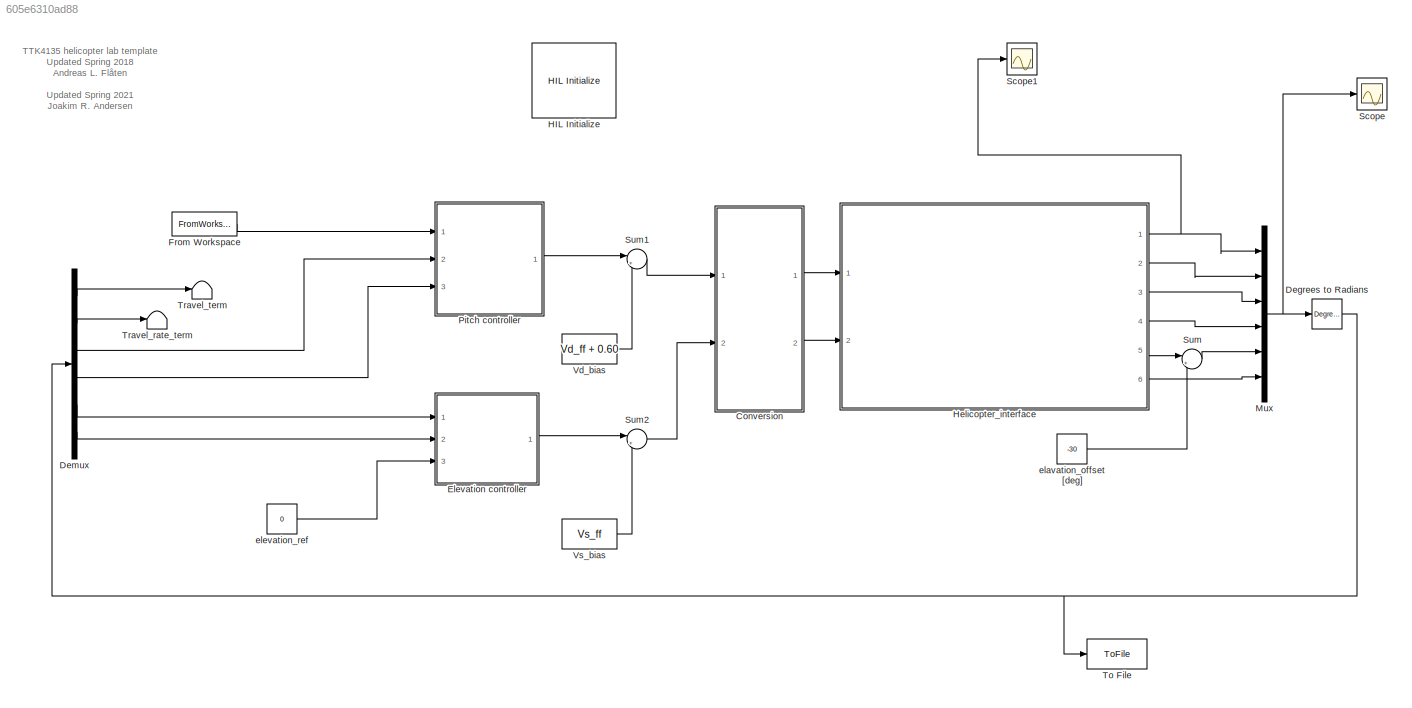
MODEL slx_605e6310ad88
KIND model
CONFIG AbsTol = auto
CONFIG EnableMultiTasking = on
CONFIG FixedStep = 0.002
CONFIG MaxStep = auto
CONFIG MinStep = auto
CONFIG PostLoadFcn = qc_set_target_type(getConfigSet(bdroot, 'QUARC Default Target Configuration'));
CONFIG RelTol = 1e-3
CONFIG SampleTimeConstraint = Unconstrained
CONFIG SolverName = ode1
CONFIG StartTime = 0.0
CONFIG StopTime = 35
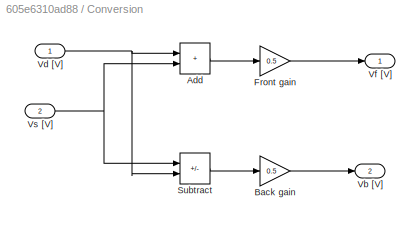
BLOCK [SubSystem] Conversion
  Ports = [2, 2]
  RequestExecContextInheritance = off
BLOCK [Sum] Conversion/Add
  IconShape = rectangular
  Ports = [2, 1]
BLOCK [Gain] Conversion/Back gain
  Gain = 0.5
BLOCK [Gain] Conversion/Front gain
  Gain = 0.5
BLOCK [Sum] Conversion/Subtract
  IconShape = rectangular
  Inputs = +-
  Ports = [2, 1]
BLOCK [Outport] Conversion/Vb [V]
  Port = 2
BLOCK [Inport] Conversion/Vd [V]
BLOCK [Outport] Conversion/Vf [V]
BLOCK [Inport] Conversion/Vs [V]
  Port = 2
BLOCK [Reference] Degrees to Radians  REF=simulink_extras/Transformations/Degrees to
Radians
  Ports = [1, 1]
  SourceBlock = simulink_extras/Transformations/Degrees to\nRadians
  SourceProductBaseCode = SL
  SourceType = DegreesToRadians
BLOCK [Demux] Demux
  Outputs = 6
  Ports = [1, 6]
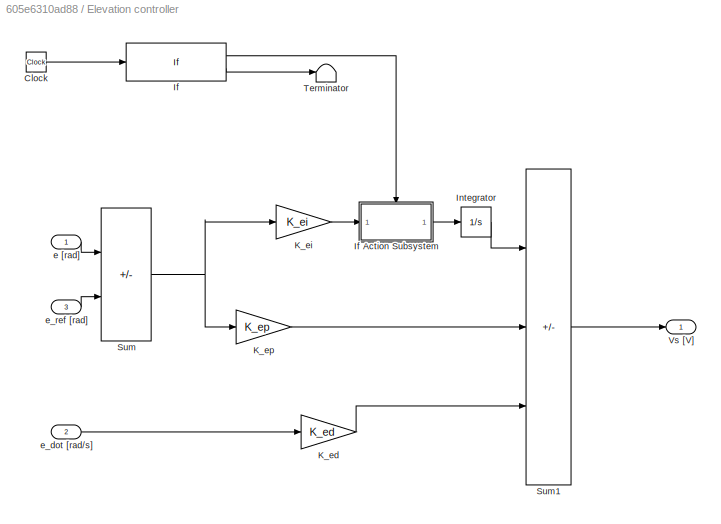
BLOCK [SubSystem] Elevation controller
  Ports = [3, 1]
  RequestExecContextInheritance = off
BLOCK [Clock] Elevation controller/Clock
BLOCK [If] Elevation controller/If
  IfExpression = u1 >=2
  Ports = [1, 2]
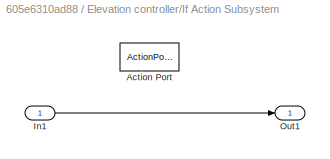
BLOCK [SubSystem] Elevation controller/If Action Subsystem
  Ports = [1, 1, 0, 0, 0, 0, 0, 1]
  RequestExecContextInheritance = off
  TreatAsAtomicUnit = on
BLOCK [ActionPort] Elevation controller/If Action Subsystem/Action Port
  ActionPortLabel = if(u1 >=2)
BLOCK [Inport] Elevation controller/If Action Subsystem/In1
BLOCK [Outport] Elevation controller/If Action Subsystem/Out1
BLOCK [Integrator] Elevation controller/Integrator
  LimitOutput = on
  Ports = [1, 1]
BLOCK [Gain] Elevation controller/K_ed
  Gain = K_ed
  OutDataTypeStr = Inherit: Same as input
  ParamDataTypeStr = Inherit: Same as input
  SaturateOnIntegerOverflow = on
BLOCK [Gain] Elevation controller/K_ei
  Gain = K_ei
  OutDataTypeStr = Inherit: Same as input
  ParamDataTypeStr = Inherit: Same as input
  SaturateOnIntegerOverflow = on
BLOCK [Gain] Elevation controller/K_ep
  Gain = K_ep
  OutDataTypeStr = Inherit: Same as input
  ParamDataTypeStr = Inherit: Same as input
  SaturateOnIntegerOverflow = on
BLOCK [Sum] Elevation controller/Sum
  IconShape = rectangular
  InputSameDT = on
  Inputs = -+
  OutDataTypeStr = Inherit: Same as first input
  Ports = [2, 1]
  SaturateOnIntegerOverflow = on
BLOCK [Sum] Elevation controller/Sum1
  IconShape = rectangular
  InputSameDT = on
  Inputs = ++-
  OutDataTypeStr = Inherit: Same as first input
  Ports = [3, 1]
  SaturateOnIntegerOverflow = on
BLOCK [Terminator] Elevation controller/Terminator
BLOCK [Outport] Elevation controller/Vs [V]
  InitialOutput = 0
BLOCK [Inport] Elevation controller/e [rad]
BLOCK [Inport] Elevation controller/e_dot [rad//s]
  Port = 2
BLOCK [Inport] Elevation controller/e_ref [rad]
  Port = 3
BLOCK [FromWorkspace] From Workspace
  SampleTime = -1
  VariableName = uref
BLOCK [Reference] HIL Initialize  REF=quarc_library/Data Acquisition/Generic/Configuration/HIL Initialize
  AttributesFormatString = %<object_name> (%<board_type>-%<board_number>)
  Ports = []
  Priority = -99
  SourceBlock = quarc_library/Data Acquisition/Generic/Configuration/HIL Initialize
  SourceProductName = QUARC Targets
  SourceType = HIL Initialize
  UserDataPersistent = on
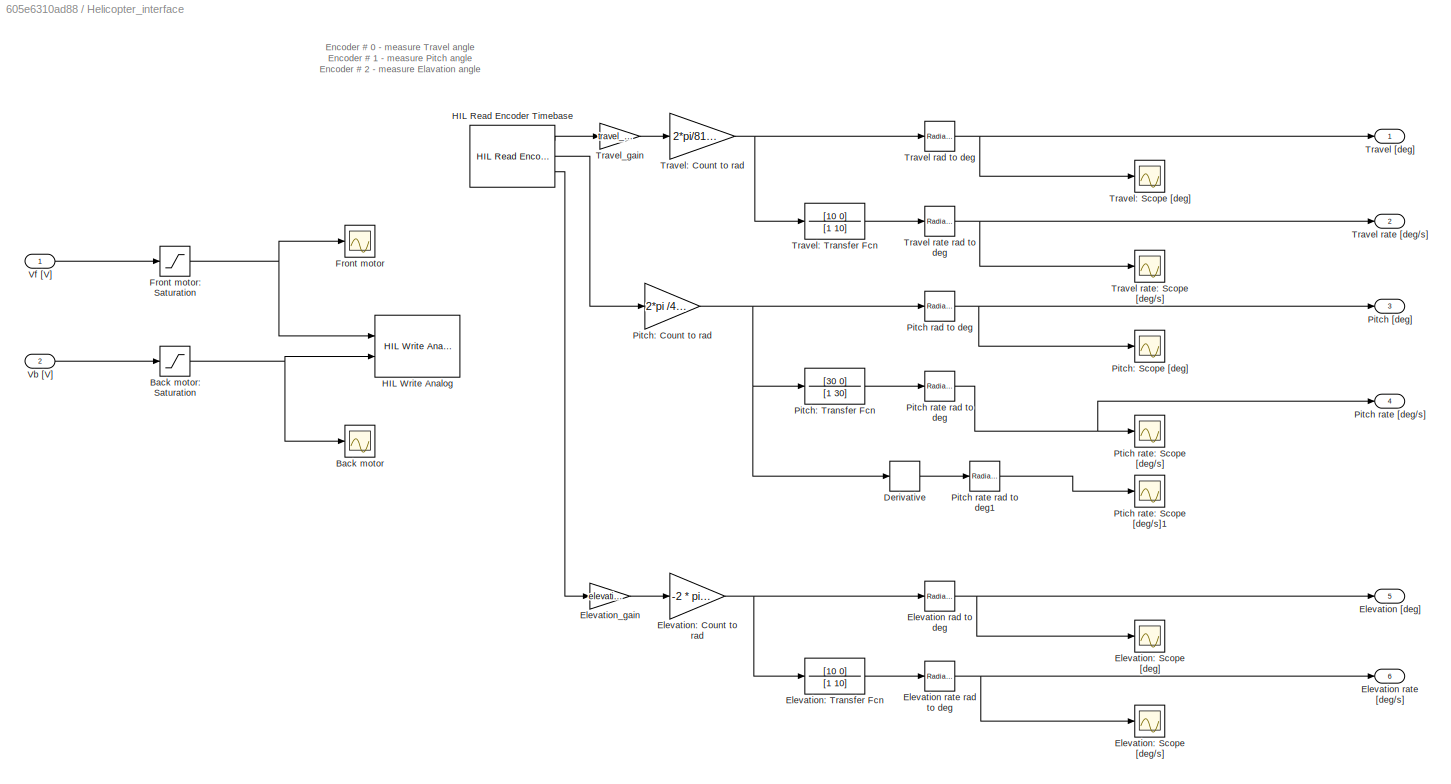
BLOCK [SubSystem] Helicopter_interface
  Ports = [2, 6]
  RequestExecContextInheritance = off
BLOCK [Scope] Helicopter_interface/Back motor
  Floating = off
  NumInputPorts = 1
  Ports = [1]
  ScopeSpecificationString = C++SS(StrPVP('Location','[1414, 470, 1738, 709]'),StrPVP('Open','off'),MxPVP('AxesTitles',54,'struct(''axes1'',''%<SignalLabel>'')'),MxPVP('ScopeGraphics',57,'struct(''FigureColor'',''[0.5 0.5 0.5]'',''AxesColor'',''[0 0 0]'',''AxesTickColor'',''[1 1 1]'',''LineColors'',''[1 1 0;1 0 1;0 1 1;1 0 0;0 1 0;0 0 1]'',''LineStyles'',''-|-|-|-|-|-'',''LineWidths'',''[0.5 0.5 0.5 0.5 0.5 0.5]'',''MarkerSty...<+319ch>
BLOCK [Saturate] Helicopter_interface/Back motor: Saturation
  LowerLimit = -5
  UpperLimit = 5
BLOCK [Derivative] Helicopter_interface/Derivative
BLOCK [Outport] Helicopter_interface/Elevation [deg]
  Port = 5
BLOCK [Reference] Helicopter_interface/Elevation rad to deg  REF=simulink_extras/Transformations/Radians
to Degrees
  Ports = [1, 1]
  SourceBlock = simulink_extras/Transformations/Radians\nto Degrees
  SourceProductBaseCode = SL
  SourceType = RadiansToDegrees
BLOCK [Outport] Helicopter_interface/Elevation rate [deg//s]
  Port = 6
BLOCK [Reference] Helicopter_interface/Elevation rate rad to deg  REF=simulink_extras/Transformations/Radians
to Degrees
  Ports = [1, 1]
  SourceBlock = simulink_extras/Transformations/Radians\nto Degrees
  SourceProductBaseCode = SL
  SourceType = RadiansToDegrees
BLOCK [Gain] Helicopter_interface/Elevation: Count to rad
  Gain = -2 * pi /4096
BLOCK [Scope] Helicopter_interface/Elevation: Scope [deg//s]
  Floating = off
  NumInputPorts = 1
  Ports = [1]
  ScopeSpecificationString = C++SS(StrPVP('Location','[929, 229, 1697, 870]'),StrPVP('Open','off'),MxPVP('AxesTitles',54,'struct(''axes1'',''%<SignalLabel>'')'),MxPVP('ScopeGraphics',57,'struct(''FigureColor'',''[0.5 0.5 0.5]'',''AxesColor'',''[0 0 0]'',''AxesTickColor'',''[1 1 1]'',''LineColors'',''[1 1 0;1 0 1;0 1 1;1 0 0;0 1 0;0 0 1]'',''LineStyles'',''-|-|-|-|-|-'',''LineWidths'',''[0.5 0.5 0.5 0.5 0.5 0.5]'',''MarkerStyl...<+314ch>
BLOCK [Scope] Helicopter_interface/Elevation: Scope [deg]
  Floating = off
  NumInputPorts = 1
  Ports = [1]
  ScopeSpecificationString = C++SS(StrPVP('Location','[751, 178, 1705, 870]'),StrPVP('Open','off'),MxPVP('AxesTitles',54,'struct(''axes1'',''%<SignalLabel>'')'),MxPVP('ScopeGraphics',57,'struct(''FigureColor'',''[0.5 0.5 0.5]'',''AxesColor'',''[0 0 0]'',''AxesTickColor'',''[1 1 1]'',''LineColors'',''[1 1 0;1 0 1;0 1 1;1 0 0;0 1 0;0 0 1]'',''LineStyles'',''-|-|-|-|-|-'',''LineWidths'',''[0.5 0.5 0.5 0.5 0.5 0.5]'',''MarkerStyl...<+313ch>
BLOCK [TransferFcn] Helicopter_interface/Elevation: Transfer Fcn
  Denominator = [1 10]
  Numerator = [10 0]
BLOCK [Gain] Helicopter_interface/Elevation_gain
  Gain = elevation_gain
  NameLocation = top
BLOCK [Scope] Helicopter_interface/Front motor
  Floating = off
  NumInputPorts = 1
  Ports = [1]
  ScopeSpecificationString = C++SS(StrPVP('Location','[1340, 218, 1666, 457]'),StrPVP('Open','off'),MxPVP('AxesTitles',54,'struct(''axes1'',''%<SignalLabel>'')'),MxPVP('ScopeGraphics',57,'struct(''FigureColor'',''[0.5 0.5 0.5]'',''AxesColor'',''[0 0 0]'',''AxesTickColor'',''[1 1 1]'',''LineColors'',''[1 1 0;1 0 1;0 1 1;1 0 0;0 1 0;0 0 1]'',''LineStyles'',''-|-|-|-|-|-'',''LineWidths'',''[0.5 0.5 0.5 0.5 0.5 0.5]'',''MarkerSty...<+287ch>
BLOCK [Saturate] Helicopter_interface/Front motor: Saturation
  LowerLimit = -5
  UpperLimit = 5
BLOCK [Reference] Helicopter_interface/HIL Read Encoder Timebase  REF=quarc_library/Data Acquisition/Generic/Timebases/HIL Read Encoder
Timebase
  AttributesFormatString = (%<object_name>)
  Ports = [0, 3]
  SourceBlock = quarc_library/Data Acquisition/Generic/Timebases/HIL Read Encoder\nTimebase
  SourceProductName = QUARC Targets
  SourceType = HIL Read Encoder Timebase
  UserDataPersistent = on
BLOCK [Reference] Helicopter_interface/HIL Write Analog  REF=quarc_library/Data Acquisition/Generic/Immediate I//O/HIL Write Analog
  AttributesFormatString = (%<object_name>)
  Ports = [2]
  SourceBlock = quarc_library/Data Acquisition/Generic/Immediate I//O/HIL Write Analog
  SourceProductName = QUARC Targets
  SourceType = HIL Write Analog
  UserDataPersistent = on
BLOCK [Outport] Helicopter_interface/Pitch [deg]
  Port = 3
BLOCK [Reference] Helicopter_interface/Pitch rad to deg  REF=simulink_extras/Transformations/Radians
to Degrees
  Ports = [1, 1]
  SourceBlock = simulink_extras/Transformations/Radians\nto Degrees
  SourceProductBaseCode = SL
  SourceType = RadiansToDegrees
BLOCK [Outport] Helicopter_interface/Pitch rate [deg//s]
  Port = 4
BLOCK [Reference] Helicopter_interface/Pitch rate rad to deg  REF=simulink_extras/Transformations/Radians
to Degrees
  Ports = [1, 1]
  SourceBlock = simulink_extras/Transformations/Radians\nto Degrees
  SourceProductBaseCode = SL
  SourceType = RadiansToDegrees
BLOCK [Reference] Helicopter_interface/Pitch rate rad to deg1  REF=simulink_extras/Transformations/Radians
to Degrees
  Ports = [1, 1]
  SourceBlock = simulink_extras/Transformations/Radians\nto Degrees
  SourceProductBaseCode = SL
  SourceType = RadiansToDegrees
BLOCK [Gain] Helicopter_interface/Pitch: Count to rad
  Gain = 2*pi /4096
  NameLocation = top
BLOCK [Scope] Helicopter_interface/Pitch: Scope [deg]
  Floating = off
  NumInputPorts = 1
  Ports = [1]
  ScopeSpecificationString = C++SS(StrPVP('Location','[1064, 516, 1642, 962]'),StrPVP('Open','off'),MxPVP('AxesTitles',54,'struct(''axes1'',''%<SignalLabel>'')'),MxPVP('ScopeGraphics',57,'struct(''FigureColor'',''[0.5 0.5 0.5]'',''AxesColor'',''[0 0 0]'',''AxesTickColor'',''[1 1 1]'',''LineColors'',''[1 1 0;1 0 1;0 1 1;1 0 0;0 1 0;0 0 1]'',''LineStyles'',''-|-|-|-|-|-'',''LineWidths'',''[0.5 0.5 0.5 0.5 0.5 0.5]'',''MarkerSty...<+315ch>
BLOCK [TransferFcn] Helicopter_interface/Pitch: Transfer Fcn
  Denominator = [1 30]
  Numerator = [30 0]
BLOCK [Scope] Helicopter_interface/Ptich rate: Scope [deg//s]
  Floating = off
  NumInputPorts = 1
  Ports = [1]
  ScopeSpecificationString = C++SS(StrPVP('Location','[1033, 217, 1561, 703]'),StrPVP('Open','off'),MxPVP('AxesTitles',54,'struct(''axes1'',''%<SignalLabel>'')'),MxPVP('ScopeGraphics',57,'struct(''FigureColor'',''[0.5 0.5 0.5]'',''AxesColor'',''[0 0 0]'',''AxesTickColor'',''[1 1 1]'',''LineColors'',''[1 1 0;1 0 1;0 1 1;1 0 0;0 1 0;0 0 1]'',''LineStyles'',''-|-|-|-|-|-'',''LineWidths'',''[0.5 0.5 0.5 0.5 0.5 0.5]'',''MarkerSty...<+315ch>
BLOCK [Scope] Helicopter_interface/Ptich rate: Scope [deg//s]1
  Floating = off
  NumInputPorts = 1
  Ports = [1]
  ScopeSpecificationString = C++SS(StrPVP('Location','[708, 654, 1549, 1288]'),StrPVP('Open','off'),MxPVP('AxesTitles',54,'struct(''axes1'',''%<SignalLabel>'')'),MxPVP('ScopeGraphics',57,'struct(''FigureColor'',''[0.5 0.5 0.5]'',''AxesColor'',''[0 0 0]'',''AxesTickColor'',''[1 1 1]'',''LineColors'',''[1 1 0;1 0 1;0 1 1;1 0 0;0 1 0;0 0 1]'',''LineStyles'',''-|-|-|-|-|-'',''LineWidths'',''[0.5 0.5 0.5 0.5 0.5 0.5]'',''MarkerSty...<+316ch>
BLOCK [Outport] Helicopter_interface/Travel [deg]
BLOCK [Reference] Helicopter_interface/Travel rad to deg  REF=simulink_extras/Transformations/Radians
to Degrees
  Ports = [1, 1]
  SourceBlock = simulink_extras/Transformations/Radians\nto Degrees
  SourceProductBaseCode = SL
  SourceType = RadiansToDegrees
BLOCK [Reference] Helicopter_interface/Travel rate  rad to deg  REF=simulink_extras/Transformations/Radians
to Degrees
  Ports = [1, 1]
  SourceBlock = simulink_extras/Transformations/Radians\nto Degrees
  SourceProductBaseCode = SL
  SourceType = RadiansToDegrees
BLOCK [Outport] Helicopter_interface/Travel rate [deg//s]
  Port = 2
BLOCK [Scope] Helicopter_interface/Travel rate: Scope [deg//s]
  Floating = off
  NumInputPorts = 1
  Ports = [1]
  ScopeSpecificationString = C++SS(StrPVP('Location','[1008, 309, 1786, 904]'),StrPVP('Open','off'),MxPVP('AxesTitles',54,'struct(''axes1'',''%<SignalLabel>'')'),MxPVP('ScopeGraphics',57,'struct(''FigureColor'',''[0.5 0.5 0.5]'',''AxesColor'',''[0 0 0]'',''AxesTickColor'',''[1 1 1]'',''LineColors'',''[1 1 0;1 0 1;0 1 1;1 0 0;0 1 0;0 0 1]'',''LineStyles'',''-|-|-|-|-|-'',''LineWidths'',''[0.5 0.5 0.5 0.5 0.5 0.5]'',''MarkerSty...<+316ch>
BLOCK [Gain] Helicopter_interface/Travel: Count to rad
  Gain = 2*pi/8192
  NameLocation = top
BLOCK [Scope] Helicopter_interface/Travel: Scope [deg]
  Floating = off
  NumInputPorts = 1
  Ports = [1]
  ScopeSpecificationString = C++SS(StrPVP('Location','[1236, 673, 1560, 912]'),StrPVP('Open','off'),MxPVP('AxesTitles',54,'struct(''axes1'',''%<SignalLabel>'')'),MxPVP('ScopeGraphics',57,'struct(''FigureColor'',''[0.5 0.5 0.5]'',''AxesColor'',''[0 0 0]'',''AxesTickColor'',''[1 1 1]'',''LineColors'',''[1 1 0;1 0 1;0 1 1;1 0 0;0 1 0;0 0 1]'',''LineStyles'',''-|-|-|-|-|-'',''LineWidths'',''[0.5 0.5 0.5 0.5 0.5 0.5]'',''MarkerSty...<+313ch>
BLOCK [TransferFcn] Helicopter_interface/Travel: Transfer Fcn
  Denominator = [1 10]
  Numerator = [10 0]
BLOCK [Gain] Helicopter_interface/Travel_gain
  Gain = travel_gain
  NameLocation = top
BLOCK [Inport] Helicopter_interface/Vb [V]
  Port = 2
BLOCK [Inport] Helicopter_interface/Vf [V]
BLOCK [Mux] Mux
  DisplayOption = bar
  Inputs = 6
  Ports = [6, 1]
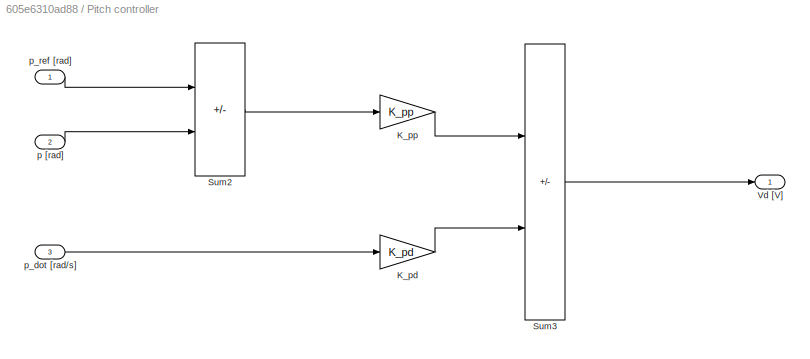
BLOCK [SubSystem] Pitch controller
  Ports = [3, 1]
  RequestExecContextInheritance = off
BLOCK [Gain] Pitch controller/K_pd
  Gain = K_pd
  OutDataTypeStr = Inherit: Same as input
  ParamDataTypeStr = Inherit: Same as input
  SaturateOnIntegerOverflow = on
BLOCK [Gain] Pitch controller/K_pp
  Gain = K_pp
  OutDataTypeStr = Inherit: Same as input
  ParamDataTypeStr = Inherit: Same as input
  SaturateOnIntegerOverflow = on
BLOCK [Sum] Pitch controller/Sum2
  IconShape = rectangular
  InputSameDT = on
  Inputs = +-
  OutDataTypeStr = Inherit: Same as first input
  Ports = [2, 1]
  SaturateOnIntegerOverflow = on
BLOCK [Sum] Pitch controller/Sum3
  IconShape = rectangular
  InputSameDT = on
  Inputs = +-
  OutDataTypeStr = Inherit: Same as first input
  Ports = [2, 1]
  SaturateOnIntegerOverflow = on
BLOCK [Outport] Pitch controller/Vd [V]
  InitialOutput = 0
BLOCK [Inport] Pitch controller/p [rad]
  Port = 2
BLOCK [Inport] Pitch controller/p_dot [rad//s]
  Port = 3
BLOCK [Inport] Pitch controller/p_ref [rad]
BLOCK [Scope] Scope
  Floating = off
  NumInputPorts = 1
  Ports = [1]
  ScopeSpecificationString = Simulink.scopes.TimeScopeBlockCfg('CurrentConfiguration', extmgr.ConfigurationSet(extmgr.Configuration('Core','General UI',true),extmgr.Configuration('Core','Source UI',true),extmgr.Configuration('Sources','WiredSimulink',true,'DataLoggingVariableName','ScopeData1'),extmgr.Configuration('Visuals','Time Domain',true,'SerializedDisplays',{struct('MinYLimReal','-199.48823','MaxYLimReal','58.23587','Y...<+1553ch>
BLOCK [Scope] Scope1
  Floating = off
  NumInputPorts = 1
  Ports = [1]
  ScopeSpecificationString = Simulink.scopes.TimeScopeBlockCfg('CurrentConfiguration', extmgr.ConfigurationSet(extmgr.Configuration('Core','General UI',true),extmgr.Configuration('Core','Source UI',true),extmgr.Configuration('Sources','WiredSimulink',true,'DataLoggingVariableName','ScopeData1'),extmgr.Configuration('Visuals','Time Domain',true,'SerializedDisplays',{struct('MinYLimReal','-231.47644','MaxYLimReal','44.22546','Y...<+1493ch>
BLOCK [Sum] Sum
  Inputs = |++
  Ports = [2, 1]
BLOCK [Sum] Sum1
  Inputs = |++
  Ports = [2, 1]
BLOCK [Sum] Sum2
  Inputs = |++
  Ports = [2, 1]
BLOCK [ToFile] To File
  Filename = angles0_1
  Ports = [1]
BLOCK [Terminator] Travel_rate_term
BLOCK [Terminator] Travel_term
BLOCK [Constant] Vd_bias
  Value = Vd_ff + 0.60
BLOCK [Constant] Vs_bias
  Value = Vs_ff
BLOCK [Constant] elavation_offset [deg]
  Value = -30
BLOCK [Constant] elevation_ref
  Value = 0
ANNOTATION (root): TTK4135 helicopter lab template Updated Spring 2018 Andreas L. Flåten Updated Spring 2021 Joakim R. Andersen
ANNOTATION Helicopter_interface: Encoder # 0 - measure Travel angle Encoder # 1 - measure Pitch angle Encoder # 2 - measure Elavation angle
LINE Conversion/Add:1 -> Conversion/Front gain:1
LINE Conversion/Back gain:1 -> Conversion/Vb [V]:1
LINE Conversion/Front gain:1 -> Conversion/Vf [V]:1
LINE Conversion/Subtract:1 -> Conversion/Back gain:1
NET Conversion/Vd [V]:1 -> Conversion/Add:1, Conversion/Subtract:2
NET Conversion/Vs [V]:1 -> Conversion/Add:2, Conversion/Subtract:1
LINE Conversion:1 -> Helicopter_interface:1
LINE Conversion:2 -> Helicopter_interface:2
NET Degrees to Radians:1 -> Demux:1, To File:1
LINE Demux:1 -> Travel_term:1
LINE Demux:2 -> Travel_rate_term:1
LINE Demux:3 -> Pitch controller:2
LINE Demux:4 -> Pitch controller:3
LINE Demux:5 -> Elevation controller:1
LINE Demux:6 -> Elevation controller:2
LINE Elevation controller/Clock:1 -> Elevation controller/If:1
LINE Elevation controller/If Action Subsystem/In1:1 -> Elevation controller/If Action Subsystem/Out1:1
LINE Elevation controller/If Action Subsystem:1 -> Elevation controller/Integrator:1
LINE Elevation controller/If:1 -> Elevation controller/If Action Subsystem:ifaction
LINE Elevation controller/If:2 -> Elevation controller/Terminator:1
LINE Elevation controller/Integrator:1 -> Elevation controller/Sum1:1
LINE Elevation controller/K_ed:1 -> Elevation controller/Sum1:3
LINE Elevation controller/K_ei:1 -> Elevation controller/If Action Subsystem:1
LINE Elevation controller/K_ep:1 -> Elevation controller/Sum1:2
LINE Elevation controller/Sum1:1 -> Elevation controller/Vs [V]:1
NET Elevation controller/Sum:1 -> Elevation controller/K_ei:1, Elevation controller/K_ep:1
LINE Elevation controller/e [rad]:1 -> Elevation controller/Sum:1
LINE Elevation controller/e_dot [rad//s]:1 -> Elevation controller/K_ed:1
LINE Elevation controller/e_ref [rad]:1 -> Elevation controller/Sum:2
LINE Elevation controller:1 -> Sum2:1
LINE From Workspace:1 -> Pitch controller:1
NET Helicopter_interface/Back motor: Saturation:1 -> Helicopter_interface/Back motor:1, Helicopter_interface/HIL Write Analog:2
LINE Helicopter_interface/Derivative:1 -> Helicopter_interface/Pitch rate rad to deg1:1
NET Helicopter_interface/Elevation rad to deg:1 -> Helicopter_interface/Elevation [deg]:1, Helicopter_interface/Elevation: Scope [deg]:1
NET Helicopter_interface/Elevation rate rad to deg:1 -> Helicopter_interface/Elevation rate [deg//s]:1, Helicopter_interface/Elevation: Scope [deg//s]:1
NET Helicopter_interface/Elevation: Count to rad:1 -> Helicopter_interface/Elevation rad to deg:1, Helicopter_interface/Elevation: Transfer Fcn:1
LINE Helicopter_interface/Elevation: Transfer Fcn:1 -> Helicopter_interface/Elevation rate rad to deg:1
LINE Helicopter_interface/Elevation_gain:1 -> Helicopter_interface/Elevation: Count to rad:1
NET Helicopter_interface/Front motor: Saturation:1 -> Helicopter_interface/Front motor:1, Helicopter_interface/HIL Write Analog:1
LINE Helicopter_interface/HIL Read Encoder Timebase:1 -> Helicopter_interface/Travel_gain:1
LINE Helicopter_interface/HIL Read Encoder Timebase:2 -> Helicopter_interface/Pitch: Count to rad:1
LINE Helicopter_interface/HIL Read Encoder Timebase:3 -> Helicopter_interface/Elevation_gain:1
NET Helicopter_interface/Pitch rad to deg:1 -> Helicopter_interface/Pitch [deg]:1, Helicopter_interface/Pitch: Scope [deg]:1
LINE Helicopter_interface/Pitch rate rad to deg1:1 -> Helicopter_interface/Ptich rate: Scope [deg//s]1:1
NET Helicopter_interface/Pitch rate rad to deg:1 -> Helicopter_interface/Pitch rate [deg//s]:1, Helicopter_interface/Ptich rate: Scope [deg//s]:1
NET Helicopter_interface/Pitch: Count to rad:1 -> Helicopter_interface/Derivative:1, Helicopter_interface/Pitch rad to deg:1, Helicopter_interface/Pitch: Transfer Fcn:1
LINE Helicopter_interface/Pitch: Transfer Fcn:1 -> Helicopter_interface/Pitch rate rad to deg:1
NET Helicopter_interface/Travel rad to deg:1 -> Helicopter_interface/Travel [deg]:1, Helicopter_interface/Travel: Scope [deg]:1
NET Helicopter_interface/Travel rate  rad to deg:1 -> Helicopter_interface/Travel rate [deg//s]:1, Helicopter_interface/Travel rate: Scope [deg//s]:1
NET Helicopter_interface/Travel: Count to rad:1 -> Helicopter_interface/Travel rad to deg:1, Helicopter_interface/Travel: Transfer Fcn:1
LINE Helicopter_interface/Travel: Transfer Fcn:1 -> Helicopter_interface/Travel rate  rad to deg:1
LINE Helicopter_interface/Travel_gain:1 -> Helicopter_interface/Travel: Count to rad:1
LINE Helicopter_interface/Vb [V]:1 -> Helicopter_interface/Back motor: Saturation:1
LINE Helicopter_interface/Vf [V]:1 -> Helicopter_interface/Front motor: Saturation:1
NET Helicopter_interface:1 -> Mux:1, Scope1:1
LINE Helicopter_interface:2 -> Mux:2
LINE Helicopter_interface:3 -> Mux:3
LINE Helicopter_interface:4 -> Mux:4
LINE Helicopter_interface:5 -> Sum:1
LINE Helicopter_interface:6 -> Mux:6
NET Mux:1 -> Degrees to Radians:1, Scope:1
LINE Pitch controller/K_pd:1 -> Pitch controller/Sum3:2
LINE Pitch controller/K_pp:1 -> Pitch controller/Sum3:1
LINE Pitch controller/Sum2:1 -> Pitch controller/K_pp:1
LINE Pitch controller/Sum3:1 -> Pitch controller/Vd [V]:1
LINE Pitch controller/p [rad]:1 -> Pitch controller/Sum2:2
LINE Pitch controller/p_dot [rad//s]:1 -> Pitch controller/K_pd:1
LINE Pitch controller/p_ref [rad]:1 -> Pitch controller/Sum2:1
LINE Pitch controller:1 -> Sum1:1
LINE Sum1:1 -> Conversion:1
LINE Sum2:1 -> Conversion:2
LINE Sum:1 -> Mux:5
LINE Vd_bias:1 -> Sum1:2
LINE Vs_bias:1 -> Sum2:2
LINE elavation_offset [deg]:1 -> Sum:2
LINE elevation_ref:1 -> Elevation controller:3
note: NET lines group one-source signal fan-out (src -> all destinations, sorted); 1:1 wires keep LINE
